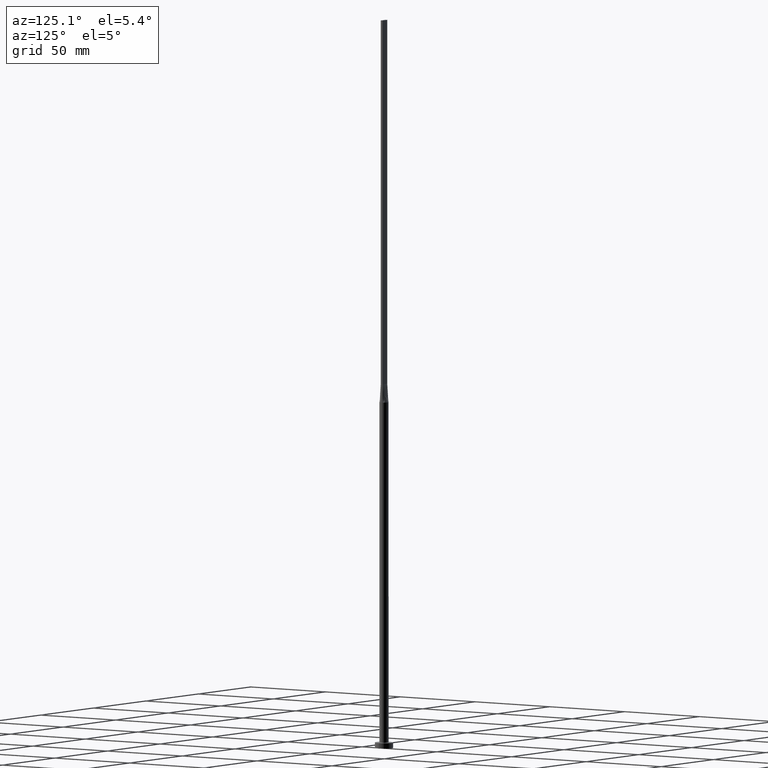
[diagram: clean part render]
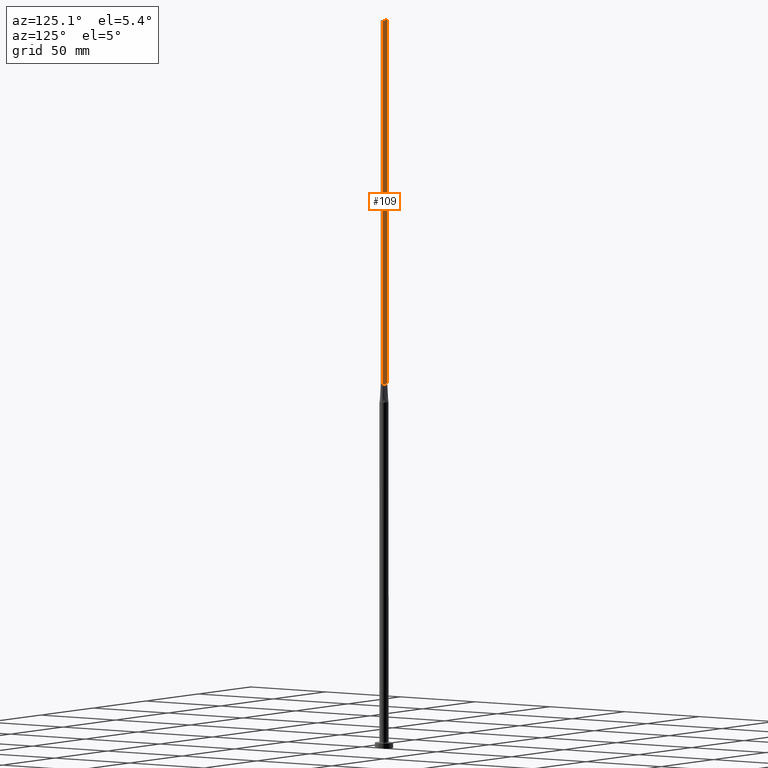
[diagram: same view with one face highlighted and labeled with its STEP entity id]
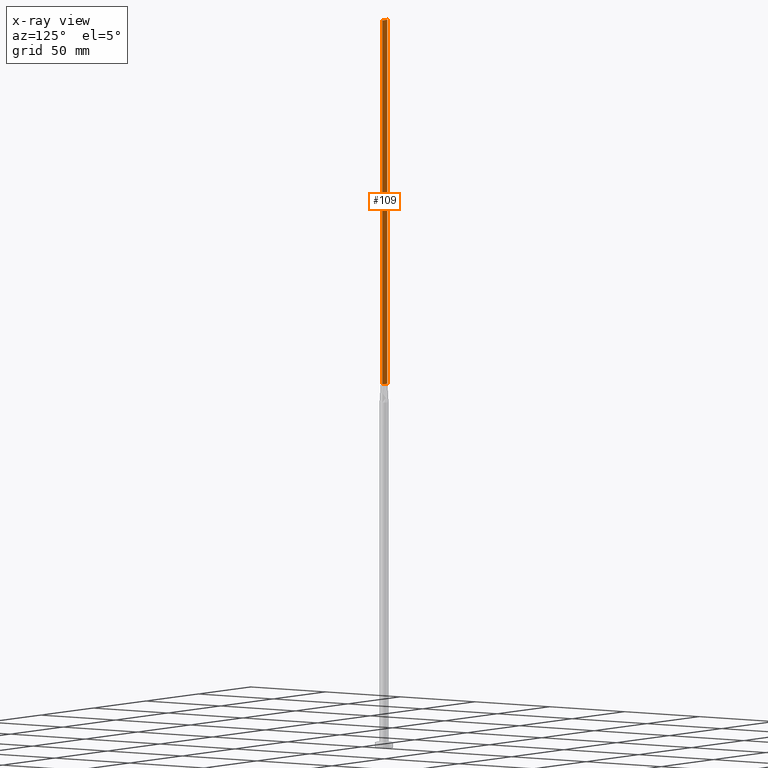
[diagram: x-ray of the same camera — body ghosted, the highlighted face saturated]
A machine part, auxiliary view. The second image highlights one B-rep face of the part: STEP entity #109.
The next image is the same camera in x-ray: the body ghosted, the highlighted face saturated — about 0% of this face is hidden behind the body in this view.
In plain terms, the highlighted planar face has unit normal (0, -1, 0).
Its self-contained STEP definition (entity closure, byte-faithful):
#8 = CARTESIAN_POINT ( 'NONE',  ( -2.249999999999999556, 0.6000000000000001998, 200.0000000000000000 ) ) ;
#37 = CARTESIAN_POINT ( 'NONE',  ( 2.249999999999999556, 0.6000000000000001998, 400.0000000000000000 ) ) ;
#74 = EDGE_CURVE ( 'NONE', #307, #139, #241, .T. ) ;
#92 = ORIENTED_EDGE ( 'NONE', *, *, #116, .F. ) ;
#103 = DIRECTION ( 'NONE',  ( -0.000000000000000000, -0.000000000000000000, -1.000000000000000000 ) ) ;
#104 = VECTOR ( 'NONE', #578, 1000.000000000000000 ) ;
#109 = ADVANCED_FACE ( 'NONE', ( #481 ), #403, .F. ) ;
#111 = CARTESIAN_POINT ( 'NONE',  ( -2.249999999999999556, 0.6000000000000001998, 400.0000000000000000 ) ) ;
#116 = EDGE_CURVE ( 'NONE', #560, #307, #388, .T. ) ;
#139 = VERTEX_POINT ( 'NONE', #255 ) ;
#163 = ORIENTED_EDGE ( 'NONE', *, *, #329, .T. ) ;
#171 = CARTESIAN_POINT ( 'NONE',  ( 2.249999999999999556, 0.6000000000000001998, 400.0000000000000000 ) ) ;
#236 = EDGE_CURVE ( 'NONE', #560, #323, #457, .T. ) ;
#241 = LINE ( 'NONE', #111, #334 ) ;
#251 = DIRECTION ( 'NONE',  ( 0.000000000000000000, -1.000000000000000000, 0.000000000000000000 ) ) ;
#255 = CARTESIAN_POINT ( 'NONE',  ( -2.249999999999999556, 0.6000000000000001998, 200.0000000000000000 ) ) ;
#257 = ORIENTED_EDGE ( 'NONE', *, *, #74, .F. ) ;
#307 = VERTEX_POINT ( 'NONE', #539 ) ;
#318 = CARTESIAN_POINT ( 'NONE',  ( 2.249999999999999556, 0.6000000000000001998, 200.0000000000000000 ) ) ;
#323 = VERTEX_POINT ( 'NONE', #318 ) ;
#329 = EDGE_CURVE ( 'NONE', #323, #139, #417, .T. ) ;
#334 = VECTOR ( 'NONE', #103, 1000.000000000000000 ) ;
#341 = DIRECTION ( 'NONE',  ( 0.000000000000000000, -0.000000000000000000, -1.000000000000000000 ) ) ;
#348 = DIRECTION ( 'NONE',  ( -0.000000000000000000, -0.000000000000000000, -1.000000000000000000 ) ) ;
#363 = AXIS2_PLACEMENT_3D ( 'NONE', #449, #251, #341 ) ;
#374 = VECTOR ( 'NONE', #348, 1000.000000000000000 ) ;
#388 = LINE ( 'NONE', #37, #104 ) ;
#403 = PLANE ( 'NONE',  #363 ) ;
#417 = LINE ( 'NONE', #8, #543 ) ;
#449 = CARTESIAN_POINT ( 'NONE',  ( 2.249999999999999556, 0.6000000000000001998, 400.0000000000000000 ) ) ;
#457 = LINE ( 'NONE', #171, #374 ) ;
#481 = FACE_OUTER_BOUND ( 'NONE', #579, .T. ) ;
#492 = ORIENTED_EDGE ( 'NONE', *, *, #236, .T. ) ;
#505 = DIRECTION ( 'NONE',  ( -1.000000000000000000, -0.000000000000000000, -0.000000000000000000 ) ) ;
#539 = CARTESIAN_POINT ( 'NONE',  ( -2.249999999999999556, 0.6000000000000001998, 400.0000000000000000 ) ) ;
#543 = VECTOR ( 'NONE', #505, 1000.000000000000000 ) ;
#548 = CARTESIAN_POINT ( 'NONE',  ( 2.249999999999999556, 0.6000000000000001998, 400.0000000000000000 ) ) ;
#560 = VERTEX_POINT ( 'NONE', #548 ) ;
#578 = DIRECTION ( 'NONE',  ( -1.000000000000000000, 0.000000000000000000, 0.000000000000000000 ) ) ;
#579 = EDGE_LOOP ( 'NONE', ( #163, #257, #92, #492 ) ) ;